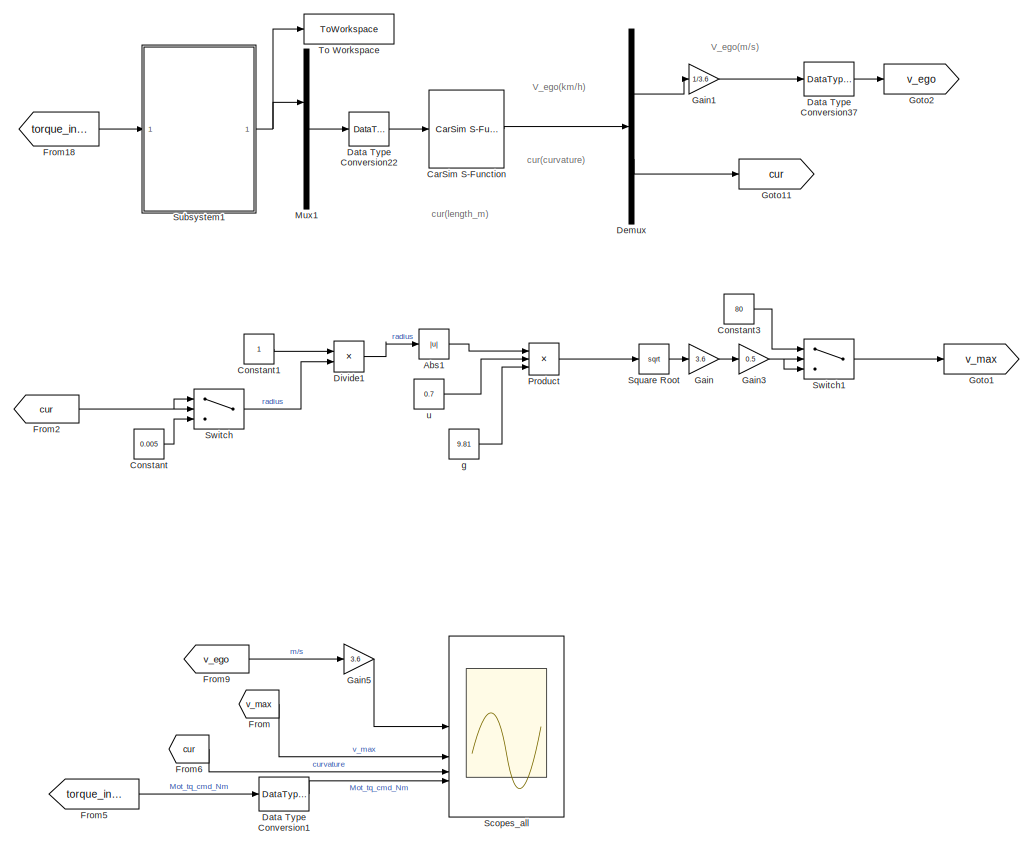
[diagram: root canvas - part 1/2, right side, full height]
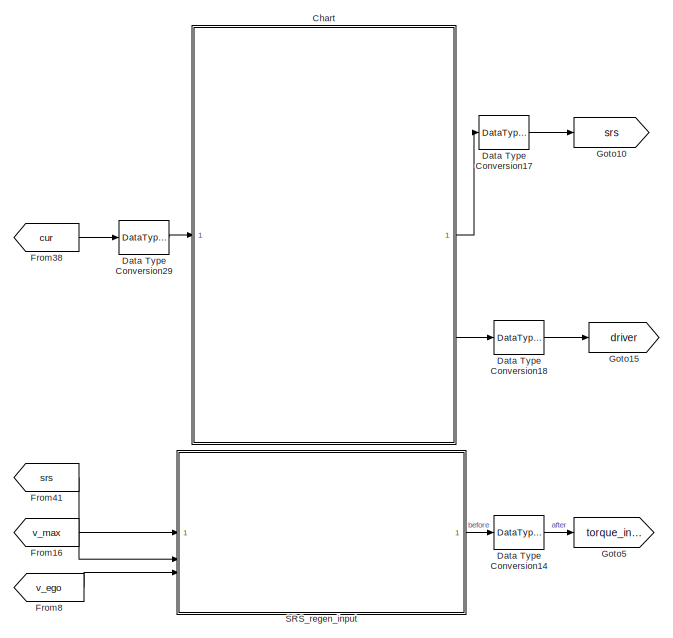
[diagram: root canvas - part 2/2, middle left region]
MODEL slx_235b939f22fc
KIND model
CONFIG AbsTol = 1e-6
CONFIG EnableMultiTasking = off
CONFIG FixedStep = 0.0005
CONFIG InitFcn = R2D = 180/pi;
CONFIG MaxStep = auto
CONFIG MinStep = auto
CONFIG RelTol = 1e-3
CONFIG SampleTimeConstraint = Unconstrained
CONFIG SolverName = FixedStepDiscrete
CONFIG StartTime = 0
CONFIG StopTime = 45
BLOCK [Abs] Abs1
  SaturateOnIntegerOverflow = off
BLOCK [Reference] CarSim S-Function  REF=Solver_SF/CarSim S-Function
  Priority = 1
  SourceBlock = Solver_SF/CarSim S-Function
  SourceProductName = CarSim S-Function
  SourceType = Vehicle math model library
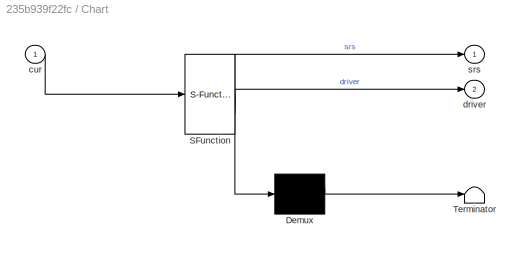
BLOCK [SubSystem] Chart
  ErrorFcn = Stateflow.Translate.translate
  PermitHierarchicalResolution = ExplicitOnly
  SFBlockType = Chart
  SystemSampleTime = 0.01
  TreatAsAtomicUnit = on
BLOCK [Demux] Chart/ Demux 
  Outputs = 1
BLOCK [S-Function] Chart/ SFunction 
  EnableBusSupport = on
  FunctionName = sf_sfun
  PortCounts = [1 3]
  SFcnIsStateOwnerBlock = off
  SFunctionDeploymentMode = off
  Tag = Stateflow S-Function 2
BLOCK [Terminator] Chart/ Terminator 
BLOCK [Inport] Chart/cur
BLOCK [Outport] Chart/driver
  Port = 2
BLOCK [Outport] Chart/srs
BLOCK [Constant] Constant
  Value = 0.005
BLOCK [Constant] Constant1
BLOCK [Constant] Constant3
  Value = 80
BLOCK [DataTypeConversion] Data Type Conversion1
  OutDataTypeStr = fixdt(1,16,2^-9)
  RndMeth = Floor
  SaturateOnIntegerOverflow = off
BLOCK [DataTypeConversion] Data Type Conversion14
  OutDataTypeStr = fixdt(1,16,0)
  RndMeth = Nearest
  SaturateOnIntegerOverflow = off
BLOCK [DataTypeConversion] Data Type Conversion17
  OutDataTypeStr = boolean
  RndMeth = Floor
  SaturateOnIntegerOverflow = off
BLOCK [DataTypeConversion] Data Type Conversion18
  OutDataTypeStr = boolean
  RndMeth = Floor
  SaturateOnIntegerOverflow = off
BLOCK [DataTypeConversion] Data Type Conversion22
  OutDataTypeStr = double
  RndMeth = Nearest
  SaturateOnIntegerOverflow = off
BLOCK [DataTypeConversion] Data Type Conversion29
  OutDataTypeStr = fixdt(1,16,2^-6)
  RndMeth = Round
  SaturateOnIntegerOverflow = off
BLOCK [DataTypeConversion] Data Type Conversion37
  OutDataTypeStr = fixdt(1,16,0.01,2^-6)
  RndMeth = Simplest
  SaturateOnIntegerOverflow = off
BLOCK [Demux] Demux
  Outputs = 2
BLOCK [Product] Divide1
  Inputs = */
BLOCK [From] From
  GotoTag = v_max
BLOCK [From] From16
  GotoTag = v_max
BLOCK [From] From18
  GotoTag = torque_input
BLOCK [From] From2
  GotoTag = cur
BLOCK [From] From38
  GotoTag = cur
BLOCK [From] From41
  GotoTag = srs
BLOCK [From] From5
  GotoTag = torque_input
BLOCK [From] From6
  GotoTag = cur
BLOCK [From] From8
  GotoTag = v_ego
BLOCK [From] From9
  GotoTag = v_ego
BLOCK [Gain] Gain
  Gain = 3.6
BLOCK [Gain] Gain1
  Gain = 1/3.6
BLOCK [Gain] Gain3
  Gain = 0.5
BLOCK [Gain] Gain5
  Gain = 3.6
BLOCK [Goto] Goto1
  GotoTag = v_max
BLOCK [Goto] Goto10
  GotoTag = srs
BLOCK [Goto] Goto11
  GotoTag = cur
BLOCK [Goto] Goto15
  GotoTag = driver
BLOCK [Goto] Goto2
  GotoTag = v_ego
BLOCK [Goto] Goto5
  GotoTag = torque_input
BLOCK [Mux] Mux1
  DisplayOption = bar
  Inputs = 1
BLOCK [Product] Product
  Inputs = 3
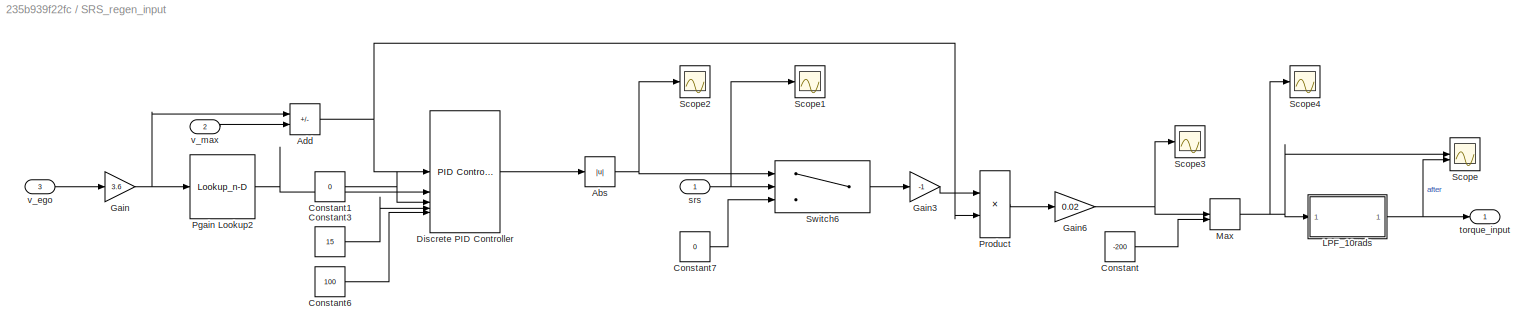
BLOCK [SubSystem] SRS_regen_input
  SystemSampleTime = 0.01
  TreatAsAtomicUnit = on
BLOCK [Abs] SRS_regen_input/Abs
  SaturateOnIntegerOverflow = off
BLOCK [Sum] SRS_regen_input/Add
  IconShape = rectangular
  Inputs = +-
BLOCK [Constant] SRS_regen_input/Constant
  Value = -200
BLOCK [Constant] SRS_regen_input/Constant1
  Value = 0
BLOCK [Constant] SRS_regen_input/Constant3
  Value = 15
BLOCK [Constant] SRS_regen_input/Constant6
  Value = 100
BLOCK [Constant] SRS_regen_input/Constant7
  Value = 0
BLOCK [Reference] SRS_regen_input/Discrete PID Controller  REF=slpidlib/PID Controller
  SourceBlock = slpidlib/PID Controller
  SourceType = PID 1dof
BLOCK [Gain] SRS_regen_input/Gain
  Gain = 3.6
BLOCK [Gain] SRS_regen_input/Gain3
  Gain = -1
BLOCK [Gain] SRS_regen_input/Gain6
  Gain = 0.02
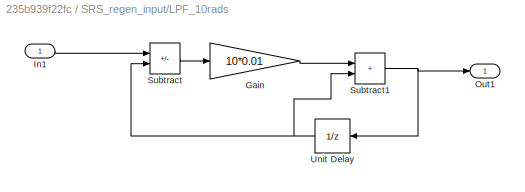
BLOCK [SubSystem] SRS_regen_input/LPF_10rads
BLOCK [Gain] SRS_regen_input/LPF_10rads/Gain
  Gain = 10*0.01
BLOCK [Inport] SRS_regen_input/LPF_10rads/In1
BLOCK [Outport] SRS_regen_input/LPF_10rads/Out1
BLOCK [Sum] SRS_regen_input/LPF_10rads/Subtract
  IconShape = rectangular
  Inputs = +-
BLOCK [Sum] SRS_regen_input/LPF_10rads/Subtract1
  IconShape = rectangular
BLOCK [UnitDelay] SRS_regen_input/LPF_10rads/Unit Delay
  HasFrameUpgradeWarning = on
  NameLocation = top
  SampleTime = 0.01
BLOCK [MinMax] SRS_regen_input/Max
  Function = max
  Inputs = 2
BLOCK [Lookup_n-D] SRS_regen_input/Pgain Lookup2
  BreakpointsForDimension1 = [0 5 10 15 20 30 40 50 60 70 80 90 100 ]
  ExtrapMethod = Clip
  InputPortMap = u0
  InternalRulePriority = Speed
  NumberOfTableDimensions = 1
  RndMeth = Simplest
  Table = [45 45 50 50 50 50 50 50 50 55 55 55 55]
  UseLastTableValue = on
BLOCK [Product] SRS_regen_input/Product
BLOCK [Scope] SRS_regen_input/Scope
  Floating = off
  NumInputPorts = 2
  ScopeSpecificationString = Simulink.scopes.TimeScopeBlockCfg('CurrentConfiguration', extmgr.ConfigurationSet(extmgr.Configuration('Core','General UI',true),extmgr.Configuration('Core','Source UI',true),extmgr.Configuration('Sources','WiredSimulink',true,'DataLoggingVariableName','ScopeData7'),extmgr.Configuration('Visuals','Time Domain',true,'SerializedDisplays',{struct('MinYLimReal','-225.00000','MaxYLimReal','25.00000','Y...<+1474ch>
BLOCK [Scope] SRS_regen_input/Scope1
  Floating = off
  NumInputPorts = 1
  ScopeSpecificationString = Simulink.scopes.TimeScopeBlockCfg('CurrentConfiguration', extmgr.ConfigurationSet(extmgr.Configuration('Core','General UI',true),extmgr.Configuration('Core','Source UI',true),extmgr.Configuration('Sources','WiredSimulink',true,'DataLoggingVariableName','ScopeData2'),extmgr.Configuration('Visuals','Time Domain',true,'SerializedDisplays',{struct('MinYLimReal','-0.01346','MaxYLimReal','0.02417','YLab...<+1410ch>
BLOCK [Scope] SRS_regen_input/Scope2
  Floating = off
  NumInputPorts = 1
  ScopeSpecificationString = Simulink.scopes.TimeScopeBlockCfg('CurrentConfiguration', extmgr.ConfigurationSet(extmgr.Configuration('Core','General UI',true),extmgr.Configuration('Core','Source UI',true),extmgr.Configuration('Sources','WiredSimulink',true,'DataLoggingVariableName','ScopeData3'),extmgr.Configuration('Visuals','Time Domain',true,'SerializedDisplays',{struct('MinYLimReal','-0.01346','MaxYLimReal','0.02417','YLab...<+1410ch>
BLOCK [Scope] SRS_regen_input/Scope3
  Floating = off
  NumInputPorts = 1
  ScopeSpecificationString = Simulink.scopes.TimeScopeBlockCfg('CurrentConfiguration', extmgr.ConfigurationSet(extmgr.Configuration('Core','General UI',true),extmgr.Configuration('Core','Source UI',true),extmgr.Configuration('Sources','WiredSimulink',true,'DataLoggingVariableName','ScopeData1'),extmgr.Configuration('Visuals','Time Domain',true,'SerializedDisplays',{struct('MinYLimReal','-185.01599','MaxYLimReal','20.5576','YL...<+1403ch>
BLOCK [Scope] SRS_regen_input/Scope4
  Floating = off
  NumInputPorts = 1
  ScopeSpecificationString = Simulink.scopes.TimeScopeBlockCfg('CurrentConfiguration', extmgr.ConfigurationSet(extmgr.Configuration('Core','General UI',true),extmgr.Configuration('Core','Source UI',true),extmgr.Configuration('Sources','WiredSimulink',true,'DataLoggingVariableName','ScopeData1'),extmgr.Configuration('Visuals','Time Domain',true,'SerializedDisplays',{struct('MinYLimReal','-185.01599','MaxYLimReal','20.5576','YL...<+1372ch>
BLOCK [Switch] SRS_regen_input/Switch6
  Criteria = u2 ~= 0
  InputSameDT = off
  SaturateOnIntegerOverflow = off
BLOCK [Inport] SRS_regen_input/srs
BLOCK [Outport] SRS_regen_input/torque_input
BLOCK [Inport] SRS_regen_input/v_ego
  Port = 3
BLOCK [Inport] SRS_regen_input/v_max
  Port = 2
BLOCK [Scope] Scopes_all
  Floating = off
  NumInputPorts = 4
  ScopeSpecificationString = Simulink.scopes.TimeScopeBlockCfg('CurrentConfiguration', extmgr.ConfigurationSet(extmgr.Configuration('Core','General UI',true,'FigureColor',[1 1 1]),extmgr.Configuration('Core','Source UI',true),extmgr.Configuration('Sources','WiredSimulink',true,'DataLoggingSaveFormat','StructureWithTime','DataLoggingDecimation','1','DataLoggingDecimateData',true,'DataLoggingVariableName','ScopeData1'),extmgr.C...<+12199ch>
BLOCK [Sqrt] Square Root
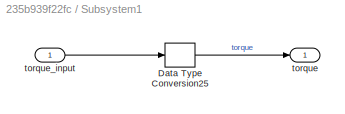
BLOCK [SubSystem] Subsystem1
  SystemSampleTime = 0.0005
  TreatAsAtomicUnit = on
BLOCK [DataTypeConversion] Subsystem1/Data Type Conversion25
  OutDataTypeStr = fixdt(1,32,0.01,0)
  RndMeth = Floor
  SaturateOnIntegerOverflow = off
BLOCK [Outport] Subsystem1/torque
BLOCK [Inport] Subsystem1/torque_input
BLOCK [Switch] Switch
  Criteria = u2 ~= 0
  InputSameDT = off
  SaturateOnIntegerOverflow = off
BLOCK [Switch] Switch1
  InputSameDT = off
  SaturateOnIntegerOverflow = off
  Threshold = 80
BLOCK [ToWorkspace] To Workspace
  FixptAsFi = on
  MaxDataPoints = inf
  SampleTime = -1
  SaveFormat = Timeseries
  VariableName = simout
BLOCK [Constant] g
  Value = 9.81
BLOCK [Constant] u
  Value = 0.7
ANNOTATION (root): V_ego(km/h)
ANNOTATION (root): V_ego(m/s)
ANNOTATION (root): cur(curvature)
ANNOTATION (root): cur(length_m)
LINE Abs1:1 -> Product:1
LINE CarSim S-Function:1 -> Demux:1
LINE Chart:1 -> Data Type Conversion17:1
LINE Chart:2 -> Data Type Conversion18:1
LINE Constant1:1 -> Divide1:1
LINE Constant3:1 -> Switch1:1
LINE Constant:1 -> Switch:3
LINE Data Type Conversion14:1 -> Goto5:1
LINE Data Type Conversion17:1 -> Goto10:1
LINE Data Type Conversion18:1 -> Goto15:1
LINE Data Type Conversion1:1 -> Scopes_all:4
LINE Data Type Conversion22:1 -> CarSim S-Function:1
LINE Data Type Conversion29:1 -> Chart:1
LINE Data Type Conversion37:1 -> Goto2:1
LINE Demux:1 -> Gain1:1
LINE Demux:2 -> Goto11:1
LINE Divide1:1 -> Abs1:1
LINE From16:1 -> SRS_regen_input:2
LINE From18:1 -> Subsystem1:1
NET From2:1 -> Switch:1, Switch:2
LINE From38:1 -> Data Type Conversion29:1
LINE From41:1 -> SRS_regen_input:1
LINE From5:1 -> Data Type Conversion1:1
LINE From6:1 -> Scopes_all:3
LINE From8:1 -> SRS_regen_input:3
LINE From9:1 -> Gain5:1
LINE From:1 -> Scopes_all:2
LINE Gain1:1 -> Data Type Conversion37:1
NET Gain3:1 -> Switch1:2, Switch1:3
LINE Gain5:1 -> Scopes_all:1
LINE Gain:1 -> Gain3:1
LINE Mux1:1 -> Data Type Conversion22:1
LINE Product:1 -> Square Root:1
NET SRS_regen_input/Abs:1 -> SRS_regen_input/Scope2:1, SRS_regen_input/Switch6:1
NET SRS_regen_input/Add:1 -> SRS_regen_input/Discrete PID Controller:1, SRS_regen_input/Product:2
LINE SRS_regen_input/Constant1:1 -> SRS_regen_input/Discrete PID Controller:3
LINE SRS_regen_input/Constant3:1 -> SRS_regen_input/Discrete PID Controller:4
LINE SRS_regen_input/Constant6:1 -> SRS_regen_input/Discrete PID Controller:5
LINE SRS_regen_input/Constant7:1 -> SRS_regen_input/Switch6:3
LINE SRS_regen_input/Constant:1 -> SRS_regen_input/Max:2
LINE SRS_regen_input/Discrete PID Controller:1 -> SRS_regen_input/Abs:1
LINE SRS_regen_input/Gain3:1 -> SRS_regen_input/Product:1
NET SRS_regen_input/Gain6:1 -> SRS_regen_input/Max:1, SRS_regen_input/Scope3:1
NET SRS_regen_input/Gain:1 -> SRS_regen_input/Add:1, SRS_regen_input/Pgain Lookup2:1
LINE SRS_regen_input/LPF_10rads/Gain:1 -> SRS_regen_input/LPF_10rads/Subtract1:1
LINE SRS_regen_input/LPF_10rads/In1:1 -> SRS_regen_input/LPF_10rads/Subtract:1
NET SRS_regen_input/LPF_10rads/Subtract1:1 -> SRS_regen_input/LPF_10rads/Out1:1, SRS_regen_input/LPF_10rads/Unit Delay:1
LINE SRS_regen_input/LPF_10rads/Subtract:1 -> SRS_regen_input/LPF_10rads/Gain:1
NET SRS_regen_input/LPF_10rads/Unit Delay:1 -> SRS_regen_input/LPF_10rads/Subtract1:2, SRS_regen_input/LPF_10rads/Subtract:2
NET SRS_regen_input/LPF_10rads:1 -> SRS_regen_input/Scope:2, SRS_regen_input/torque_input:1
NET SRS_regen_input/Max:1 -> SRS_regen_input/LPF_10rads:1, SRS_regen_input/Scope4:1, SRS_regen_input/Scope:1
LINE SRS_regen_input/Pgain Lookup2:1 -> SRS_regen_input/Discrete PID Controller:2
LINE SRS_regen_input/Product:1 -> SRS_regen_input/Gain6:1
LINE SRS_regen_input/Switch6:1 -> SRS_regen_input/Gain3:1
NET SRS_regen_input/srs:1 -> SRS_regen_input/Scope1:1, SRS_regen_input/Switch6:2
LINE SRS_regen_input/v_ego:1 -> SRS_regen_input/Gain:1
LINE SRS_regen_input/v_max:1 -> SRS_regen_input/Add:2
LINE SRS_regen_input:1 -> Data Type Conversion14:1
LINE Square Root:1 -> Gain:1
LINE Subsystem1/Data Type Conversion25:1 -> Subsystem1/torque:1
LINE Subsystem1/torque_input:1 -> Subsystem1/Data Type Conversion25:1
NET Subsystem1:1 -> Mux1:1, To Workspace:1
LINE Switch1:1 -> Goto1:1
LINE Switch:1 -> Divide1:2
LINE g:1 -> Product:3
LINE u:1 -> Product:2
note: NET lines group one-source signal fan-out (src -> all destinations, sorted); 1:1 wires keep LINE
CHART Chart states=3 transitions=3
  STATE_LABEL 'INIT\n\nen:\ndriver = 0;\nsrs =0;\n'
  STATE_LABEL 'SRS_ON\n\nen:\ndriver = 0;\nsrs = 1;\n'
  STATE_LABEL 'Driver_ON\n\nen:\ndriver = 1;\nsrs = 0;\n'
CHART  states=0 transitions=0
